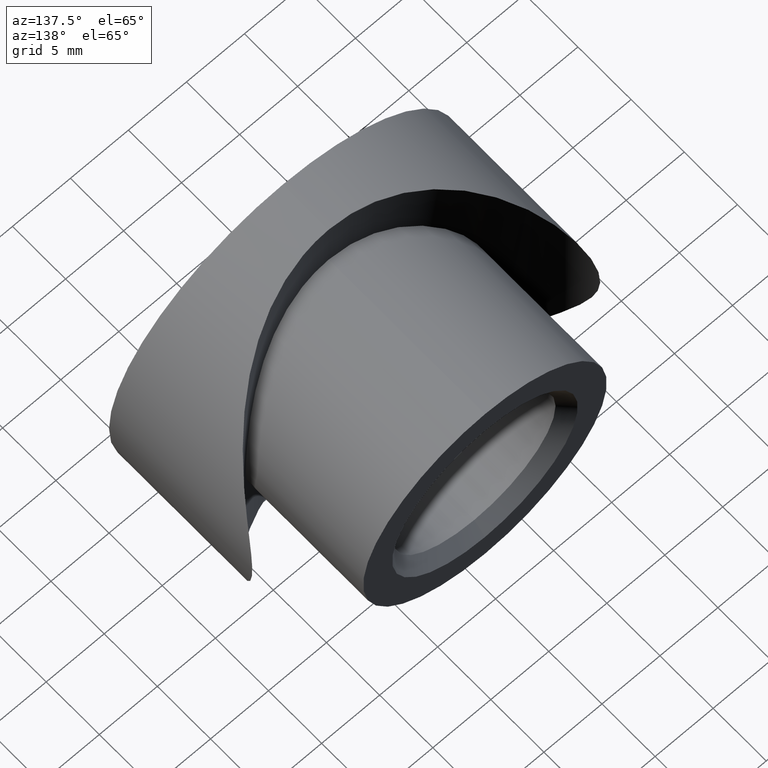
[diagram: clean part render]
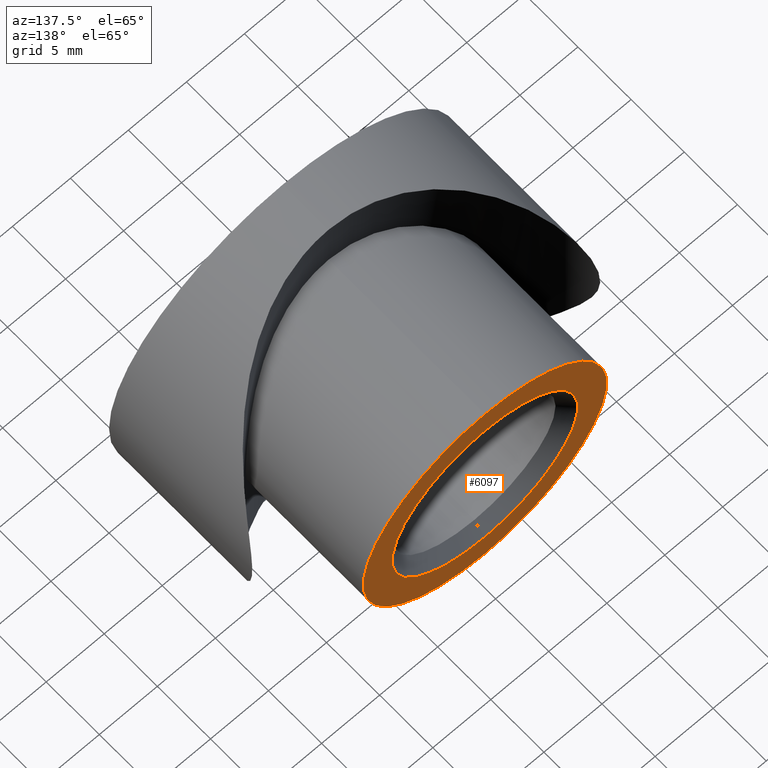
[diagram: same view with one face highlighted and labeled with its STEP entity id]
A machine part, auxiliary view. The second image highlights one B-rep face of the part: STEP entity #6097.
In plain terms, the highlighted planar face has unit normal (0, -1, 0).
Its self-contained STEP definition (entity closure, byte-faithful):
#204 = CIRCLE ( 'NONE', #9461, 10.50000000000000000 ) ;
#755 = DIRECTION ( 'NONE',  ( 0.0000000000000000000, 0.0000000000000000000, -1.000000000000000000 ) ) ;
#1212 = EDGE_CURVE ( 'NONE', #3673, #14171, #4046, .T. ) ;
#1634 = EDGE_LOOP ( 'NONE', ( #9210, #10518 ) ) ;
#2162 = CARTESIAN_POINT ( 'NONE',  ( 1.285879139104720800E-015, 19.00000000000000000, 10.50000000000000000 ) ) ;
#2271 = AXIS2_PLACEMENT_3D ( 'NONE', #9035, #8100, #5877 ) ;
#2378 = CARTESIAN_POINT ( 'NONE',  ( 0.0000000000000000000, 19.00000000000000000, 0.0000000000000000000 ) ) ;
#3089 = CARTESIAN_POINT ( 'NONE',  ( 0.0000000000000000000, 19.00000000000000000, 0.0000000000000000000 ) ) ;
#3231 = EDGE_CURVE ( 'NONE', #10576, #8317, #13283, .T. ) ;
#3673 = VERTEX_POINT ( 'NONE', #11272 ) ;
#3818 = CARTESIAN_POINT ( 'NONE',  ( 0.0000000000000000000, 19.00000000000000000, -10.50000000000000000 ) ) ;
#3910 = AXIS2_PLACEMENT_3D ( 'NONE', #13622, #6236, #755 ) ;
#4046 = CIRCLE ( 'NONE', #12381, 8.000000000000000000 ) ;
#4376 = ORIENTED_EDGE ( 'NONE', *, *, #3231, .F. ) ;
#4733 = EDGE_CURVE ( 'NONE', #8317, #10576, #204, .T. ) ;
#5287 = DIRECTION ( 'NONE',  ( 0.0000000000000000000, 0.0000000000000000000, -1.000000000000000000 ) ) ;
#5877 = DIRECTION ( 'NONE',  ( 0.0000000000000000000, 0.0000000000000000000, -1.000000000000000000 ) ) ;
#6097 = ADVANCED_FACE ( 'NONE', ( #10133, #7539 ), #10793, .F. ) ;
#6236 = DIRECTION ( 'NONE',  ( 0.0000000000000000000, -1.000000000000000000, 0.0000000000000000000 ) ) ;
#6637 = AXIS2_PLACEMENT_3D ( 'NONE', #3089, #8506, #8459 ) ;
#6663 = DIRECTION ( 'NONE',  ( 0.0000000000000000000, -1.000000000000000000, 0.0000000000000000000 ) ) ;
#7539 = FACE_OUTER_BOUND ( 'NONE', #11835, .T. ) ;
#7998 = EDGE_CURVE ( 'NONE', #14171, #3673, #11515, .T. ) ;
#8100 = DIRECTION ( 'NONE',  ( 0.0000000000000000000, -1.000000000000000000, 0.0000000000000000000 ) ) ;
#8317 = VERTEX_POINT ( 'NONE', #2162 ) ;
#8459 = DIRECTION ( 'NONE',  ( 0.0000000000000000000, -0.0000000000000000000, -1.000000000000000000 ) ) ;
#8506 = DIRECTION ( 'NONE',  ( 0.0000000000000000000, -1.000000000000000000, 0.0000000000000000000 ) ) ;
#9035 = CARTESIAN_POINT ( 'NONE',  ( 0.0000000000000000000, 19.00000000000000000, 0.0000000000000000000 ) ) ;
#9210 = ORIENTED_EDGE ( 'NONE', *, *, #1212, .T. ) ;
#9461 = AXIS2_PLACEMENT_3D ( 'NONE', #2378, #6663, #10070 ) ;
#10070 = DIRECTION ( 'NONE',  ( 0.0000000000000000000, 0.0000000000000000000, -1.000000000000000000 ) ) ;
#10133 = FACE_BOUND ( 'NONE', #1634, .T. ) ;
#10518 = ORIENTED_EDGE ( 'NONE', *, *, #7998, .T. ) ;
#10576 = VERTEX_POINT ( 'NONE', #3818 ) ;
#10793 = PLANE ( 'NONE',  #6637 ) ;
#11272 = CARTESIAN_POINT ( 'NONE',  ( 0.0000000000000000000, 19.00000000000000000, 8.000000000000000000 ) ) ;
#11306 = ORIENTED_EDGE ( 'NONE', *, *, #4733, .F. ) ;
#11515 = CIRCLE ( 'NONE', #2271, 8.000000000000000000 ) ;
#11835 = EDGE_LOOP ( 'NONE', ( #4376, #11306 ) ) ;
#12381 = AXIS2_PLACEMENT_3D ( 'NONE', #14169, #12962, #5287 ) ;
#12962 = DIRECTION ( 'NONE',  ( 0.0000000000000000000, -1.000000000000000000, 0.0000000000000000000 ) ) ;
#13283 = CIRCLE ( 'NONE', #3910, 10.50000000000000000 ) ;
#13622 = CARTESIAN_POINT ( 'NONE',  ( 0.0000000000000000000, 19.00000000000000000, 0.0000000000000000000 ) ) ;
#13644 = CARTESIAN_POINT ( 'NONE',  ( 9.797174393178825700E-016, 19.00000000000000000, -8.000000000000000000 ) ) ;
#14169 = CARTESIAN_POINT ( 'NONE',  ( 0.0000000000000000000, 19.00000000000000000, 0.0000000000000000000 ) ) ;
#14171 = VERTEX_POINT ( 'NONE', #13644 ) ;